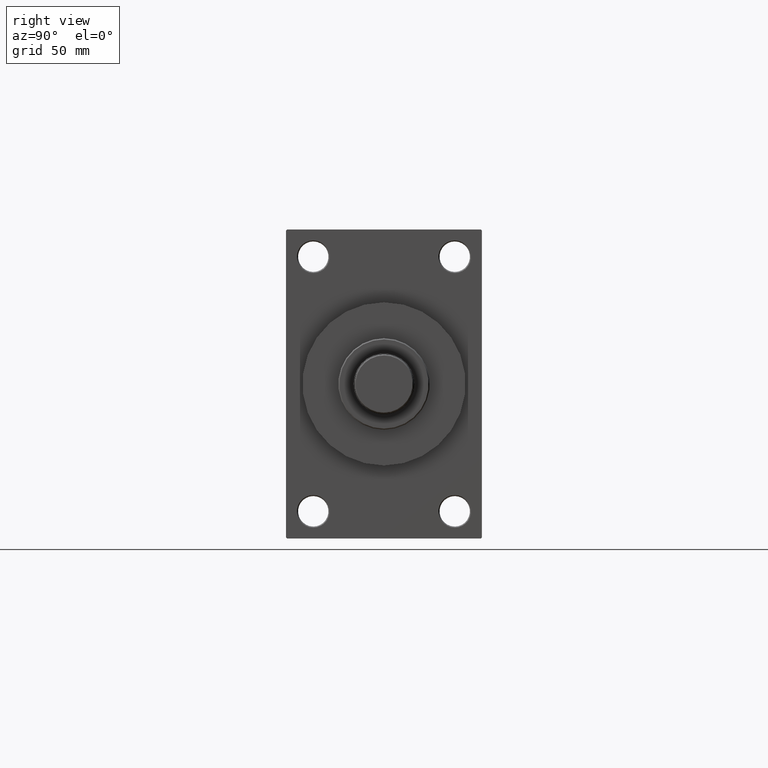
[diagram: clean part render]
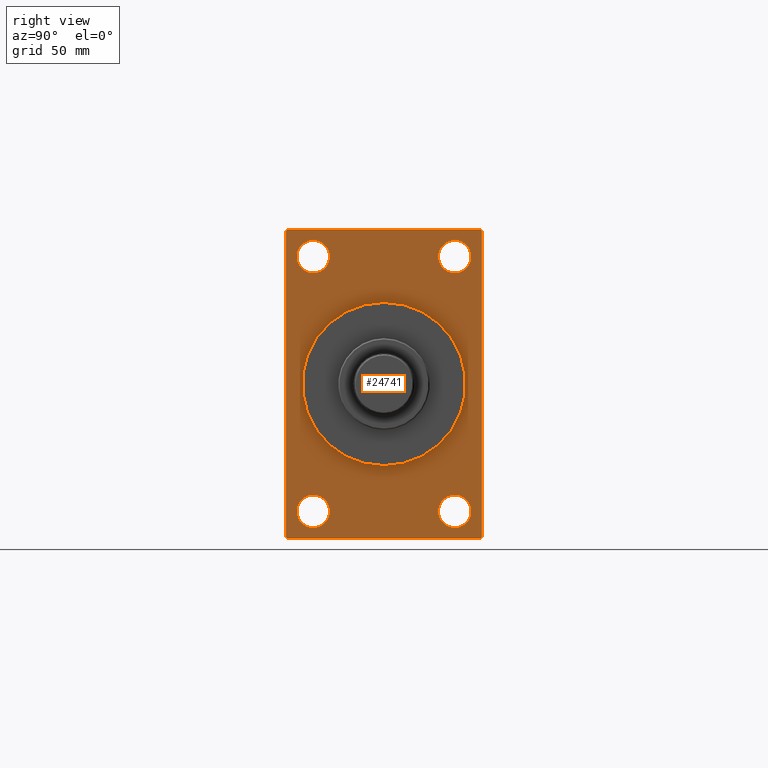
[diagram: same view with one face highlighted and labeled with its STEP entity id]
A machine part, right view. The second image highlights one B-rep face of the part: STEP entity #24741.
In plain terms, the highlighted planar face has unit normal (-1, 0, 0).
Its self-contained STEP definition (entity closure, byte-faithful):
#210 = EDGE_CURVE ( 'NONE', #25524, #32877, #15216, .T. ) ;
#510 = CARTESIAN_POINT ( 'NONE',  ( 200.0000000000000000, 45.00000000000000000, -71.00000000000000000 ) ) ;
#670 = CARTESIAN_POINT ( 'NONE',  ( 200.0000000000000000, -45.00000000000000000, 70.49999999999997158 ) ) ;
#742 = EDGE_CURVE ( 'NONE', #12012, #37354, #18954, .T. ) ;
#854 = ORIENTED_EDGE ( 'NONE', *, *, #17820, .T. ) ;
#901 = ORIENTED_EDGE ( 'NONE', *, *, #36516, .T. ) ;
#1204 = AXIS2_PLACEMENT_3D ( 'NONE', #23159, #15218, #29423 ) ;
#1546 = ORIENTED_EDGE ( 'NONE', *, *, #26477, .T. ) ;
#1964 = CARTESIAN_POINT ( 'NONE',  ( 200.0000000000000000, 45.00000000000000000, -70.49999999999997158 ) ) ;
#2225 = AXIS2_PLACEMENT_3D ( 'NONE', #18210, #3240, #10722 ) ;
#2400 = EDGE_CURVE ( 'NONE', #14563, #6595, #44534, .T. ) ;
#2439 = LINE ( 'NONE', #32329, #20140 ) ;
#2753 = CIRCLE ( 'NONE', #1204, 7.500000000000089706 ) ;
#3240 = DIRECTION ( 'NONE',  ( -1.000000000000000000, -0.000000000000000000, -0.000000000000000000 ) ) ;
#3327 = EDGE_CURVE ( 'NONE', #15336, #36480, #7127, .T. ) ;
#3375 = ORIENTED_EDGE ( 'NONE', *, *, #35602, .F. ) ;
#3703 = VECTOR ( 'NONE', #27293, 1000.000000000000000 ) ;
#3873 = VECTOR ( 'NONE', #23459, 1000.000000000000114 ) ;
#5484 = DIRECTION ( 'NONE',  ( -1.000000000000000000, -0.000000000000000000, -0.000000000000000000 ) ) ;
#6081 = VERTEX_POINT ( 'NONE', #670 ) ;
#6112 = CARTESIAN_POINT ( 'NONE',  ( 200.0000000000000000, 45.00000000000000000, 71.00000000000000000 ) ) ;
#6240 = CARTESIAN_POINT ( 'NONE',  ( 200.0000000000000000, -44.49999999999994316, 71.00000000000000000 ) ) ;
#6595 = VERTEX_POINT ( 'NONE', #41112 ) ;
#7127 = LINE ( 'NONE', #29294, #17744 ) ;
#7271 = CIRCLE ( 'NONE', #13457, 7.500000000000000000 ) ;
#7303 = DIRECTION ( 'NONE',  ( -1.000000000000000000, -0.000000000000000000, -0.000000000000000000 ) ) ;
#7658 = VERTEX_POINT ( 'NONE', #17559 ) ;
#8258 = CARTESIAN_POINT ( 'NONE',  ( 200.0000000000000000, -45.00000000000000000, 71.00000000000000000 ) ) ;
#8575 = AXIS2_PLACEMENT_3D ( 'NONE', #16164, #27688, #38769 ) ;
#8705 = CARTESIAN_POINT ( 'NONE',  ( 200.0000000000000000, 45.00000000000000000, 71.00000000000000000 ) ) ;
#9735 = DIRECTION ( 'NONE',  ( -1.000000000000000000, -0.000000000000000000, -0.000000000000000000 ) ) ;
#10116 = LINE ( 'NONE', #1964, #3873 ) ;
#10722 = DIRECTION ( 'NONE',  ( 0.000000000000000000, 0.000000000000000000, 1.000000000000000000 ) ) ;
#10876 = CIRCLE ( 'NONE', #8575, 37.50000000000000711 ) ;
#11105 = ORIENTED_EDGE ( 'NONE', *, *, #20535, .T. ) ;
#11376 = PLANE ( 'NONE',  #25993 ) ;
#12012 = VERTEX_POINT ( 'NONE', #47585 ) ;
#12260 = CARTESIAN_POINT ( 'NONE',  ( 200.0000000000000000, -32.50000000000001421, -58.49999999999998579 ) ) ;
#12566 = CARTESIAN_POINT ( 'NONE',  ( 200.0000000000000000, 45.00000000000000000, -70.49999999999997158 ) ) ;
#12609 = DIRECTION ( 'NONE',  ( 0.000000000000000000, 0.000000000000000000, 1.000000000000000000 ) ) ;
#12930 = VECTOR ( 'NONE', #35903, 1000.000000000000000 ) ;
#13069 = DIRECTION ( 'NONE',  ( -0.000000000000000000, -0.7071067811865474617, -0.7071067811865474617 ) ) ;
#13334 = VERTEX_POINT ( 'NONE', #23892 ) ;
#13457 = AXIS2_PLACEMENT_3D ( 'NONE', #22079, #46916, #36075 ) ;
#14303 = CARTESIAN_POINT ( 'NONE',  ( 200.0000000000000000, 0.000000000000000000, 0.000000000000000000 ) ) ;
#14339 = VERTEX_POINT ( 'NONE', #37878 ) ;
#14563 = VERTEX_POINT ( 'NONE', #37576 ) ;
#14898 = ORIENTED_EDGE ( 'NONE', *, *, #2400, .T. ) ;
#15216 = CIRCLE ( 'NONE', #33657, 7.500000000000089706 ) ;
#15218 = DIRECTION ( 'NONE',  ( -1.000000000000000000, -0.000000000000000000, -0.000000000000000000 ) ) ;
#15260 = CARTESIAN_POINT ( 'NONE',  ( 200.0000000000000000, 32.49999999999998579, -66.00000000000005684 ) ) ;
#15336 = VERTEX_POINT ( 'NONE', #24219 ) ;
#15339 = CIRCLE ( 'NONE', #42237, 37.50000000000000711 ) ;
#15843 = DIRECTION ( 'NONE',  ( 0.000000000000000000, 0.000000000000000000, 1.000000000000000000 ) ) ;
#16068 = ORIENTED_EDGE ( 'NONE', *, *, #742, .T. ) ;
#16109 = AXIS2_PLACEMENT_3D ( 'NONE', #36473, #7303, #39613 ) ;
#16164 = CARTESIAN_POINT ( 'NONE',  ( 200.0000000000000000, 0.000000000000000000, 0.000000000000000000 ) ) ;
#16540 = EDGE_LOOP ( 'NONE', ( #854, #14898 ) ) ;
#16605 = ORIENTED_EDGE ( 'NONE', *, *, #47282, .F. ) ;
#17559 = CARTESIAN_POINT ( 'NONE',  ( 200.0000000000000000, -32.50000000000001421, -50.99999999999989342 ) ) ;
#17730 = DIRECTION ( 'NONE',  ( 1.000000000000000000, 0.000000000000000000, 0.000000000000000000 ) ) ;
#17744 = VECTOR ( 'NONE', #18236, 1000.000000000000000 ) ;
#17785 = ORIENTED_EDGE ( 'NONE', *, *, #35500, .T. ) ;
#17820 = EDGE_CURVE ( 'NONE', #6595, #14563, #7271, .T. ) ;
#17967 = DIRECTION ( 'NONE',  ( 0.000000000000000000, 0.000000000000000000, -1.000000000000000000 ) ) ;
#18210 = CARTESIAN_POINT ( 'NONE',  ( 200.0000000000000000, 32.49999999999998579, 58.50000000000000711 ) ) ;
#18236 = DIRECTION ( 'NONE',  ( 0.000000000000000000, -0.7071067811865671127, 0.7071067811865279218 ) ) ;
#18629 = DIRECTION ( 'NONE',  ( -0.000000000000000000, 0.000000000000000000, 1.000000000000000000 ) ) ;
#18954 = LINE ( 'NONE', #22564, #12930 ) ;
#19084 = DIRECTION ( 'NONE',  ( 0.000000000000000000, 0.000000000000000000, -1.000000000000000000 ) ) ;
#19958 = EDGE_LOOP ( 'NONE', ( #43936, #11105 ) ) ;
#20140 = VECTOR ( 'NONE', #13069, 1000.000000000000114 ) ;
#20497 = EDGE_LOOP ( 'NONE', ( #46306, #3375 ) ) ;
#20535 = EDGE_CURVE ( 'NONE', #32877, #25524, #2753, .T. ) ;
#20608 = ORIENTED_EDGE ( 'NONE', *, *, #41942, .T. ) ;
#21365 = VERTEX_POINT ( 'NONE', #23873 ) ;
#22079 = CARTESIAN_POINT ( 'NONE',  ( 200.0000000000000000, -32.50000000000001421, 58.50000000000001421 ) ) ;
#22265 = CIRCLE ( 'NONE', #2225, 7.500000000000076383 ) ;
#22564 = CARTESIAN_POINT ( 'NONE',  ( 200.0000000000000000, -44.50000000000000000, -71.00000000000000000 ) ) ;
#23159 = CARTESIAN_POINT ( 'NONE',  ( 200.0000000000000000, 32.49999999999998579, -58.49999999999998579 ) ) ;
#23280 = EDGE_LOOP ( 'NONE', ( #1546, #16068, #28382, #29362, #16605, #38329, #24348, #20608 ) ) ;
#23459 = DIRECTION ( 'NONE',  ( -0.000000000000000000, 0.7071067811865474617, 0.7071067811865474617 ) ) ;
#23768 = AXIS2_PLACEMENT_3D ( 'NONE', #46127, #9735, #42025 ) ;
#23873 = CARTESIAN_POINT ( 'NONE',  ( 200.0000000000000000, -32.50000000000001421, -66.00000000000005684 ) ) ;
#23892 = CARTESIAN_POINT ( 'NONE',  ( 200.0000000000000000, 4.592425496802575156E-15, -37.50000000000000711 ) ) ;
#24219 = CARTESIAN_POINT ( 'NONE',  ( 200.0000000000000000, 45.00000000000000000, 70.50000000000001421 ) ) ;
#24348 = ORIENTED_EDGE ( 'NONE', *, *, #29611, .T. ) ;
#24730 = EDGE_CURVE ( 'NONE', #44725, #37354, #33545, .T. ) ;
#24741 = ADVANCED_FACE ( 'NONE', ( #28748, #43441, #32837, #40066, #29687, #47299 ), #11376, .F. ) ;
#25524 = VERTEX_POINT ( 'NONE', #15260 ) ;
#25993 = AXIS2_PLACEMENT_3D ( 'NONE', #14303, #26088, #18629 ) ;
#26050 = AXIS2_PLACEMENT_3D ( 'NONE', #12260, #5484, #26961 ) ;
#26088 = DIRECTION ( 'NONE',  ( -1.000000000000000000, 0.000000000000000000, -0.000000000000000000 ) ) ;
#26477 = EDGE_CURVE ( 'NONE', #6081, #12012, #30912, .T. ) ;
#26760 = EDGE_LOOP ( 'NONE', ( #17785, #35934 ) ) ;
#26961 = DIRECTION ( 'NONE',  ( 0.000000000000000000, 0.000000000000000000, 1.000000000000000000 ) ) ;
#27293 = DIRECTION ( 'NONE',  ( 0.000000000000000000, 0.000000000000000000, -1.000000000000000000 ) ) ;
#27688 = DIRECTION ( 'NONE',  ( 1.000000000000000000, 0.000000000000000000, 0.000000000000000000 ) ) ;
#28382 = ORIENTED_EDGE ( 'NONE', *, *, #24730, .F. ) ;
#28570 = EDGE_CURVE ( 'NONE', #47504, #31920, #36851, .T. ) ;
#28748 = FACE_BOUND ( 'NONE', #16540, .T. ) ;
#29237 = CARTESIAN_POINT ( 'NONE',  ( 200.0000000000000000, 32.49999999999998579, 50.99999999999993605 ) ) ;
#29294 = CARTESIAN_POINT ( 'NONE',  ( 200.0000000000000000, 44.50000000000000000, 71.00000000000000000 ) ) ;
#29362 = ORIENTED_EDGE ( 'NONE', *, *, #42997, .T. ) ;
#29423 = DIRECTION ( 'NONE',  ( 0.000000000000000000, 0.000000000000000000, 1.000000000000000000 ) ) ;
#29611 = EDGE_CURVE ( 'NONE', #36480, #30186, #39598, .T. ) ;
#29687 = FACE_BOUND ( 'NONE', #20497, .T. ) ;
#29731 = CARTESIAN_POINT ( 'NONE',  ( 200.0000000000000000, 0.000000000000000000, 0.000000000000000000 ) ) ;
#30186 = VERTEX_POINT ( 'NONE', #6240 ) ;
#30431 = EDGE_LOOP ( 'NONE', ( #901, #40733 ) ) ;
#30912 = LINE ( 'NONE', #8258, #3703 ) ;
#31920 = VERTEX_POINT ( 'NONE', #29237 ) ;
#32329 = CARTESIAN_POINT ( 'NONE',  ( 200.0000000000000000, -45.00000000000000000, 70.49999999999997158 ) ) ;
#32659 = CARTESIAN_POINT ( 'NONE',  ( 200.0000000000000000, 44.50000000000000000, 71.00000000000000000 ) ) ;
#32837 = FACE_BOUND ( 'NONE', #19958, .T. ) ;
#32877 = VERTEX_POINT ( 'NONE', #42461 ) ;
#33313 = DIRECTION ( 'NONE',  ( 0.000000000000000000, -1.000000000000000000, 0.000000000000000000 ) ) ;
#33545 = LINE ( 'NONE', #510, #46762 ) ;
#33657 = AXIS2_PLACEMENT_3D ( 'NONE', #45617, #37181, #12609 ) ;
#34453 = EDGE_CURVE ( 'NONE', #7658, #21365, #37560, .T. ) ;
#34730 = LINE ( 'NONE', #8705, #41717 ) ;
#35500 = EDGE_CURVE ( 'NONE', #21365, #7658, #37634, .T. ) ;
#35602 = EDGE_CURVE ( 'NONE', #13334, #14339, #15339, .T. ) ;
#35903 = DIRECTION ( 'NONE',  ( 0.000000000000000000, 0.7071067811865671127, -0.7071067811865279218 ) ) ;
#35934 = ORIENTED_EDGE ( 'NONE', *, *, #34453, .T. ) ;
#36075 = DIRECTION ( 'NONE',  ( 0.000000000000000000, 0.000000000000000000, 1.000000000000000000 ) ) ;
#36473 = CARTESIAN_POINT ( 'NONE',  ( 200.0000000000000000, 32.49999999999998579, 58.50000000000000711 ) ) ;
#36480 = VERTEX_POINT ( 'NONE', #32659 ) ;
#36516 = EDGE_CURVE ( 'NONE', #31920, #47504, #22265, .T. ) ;
#36851 = CIRCLE ( 'NONE', #16109, 7.500000000000076383 ) ;
#37181 = DIRECTION ( 'NONE',  ( -1.000000000000000000, -0.000000000000000000, -0.000000000000000000 ) ) ;
#37354 = VERTEX_POINT ( 'NONE', #47659 ) ;
#37560 = CIRCLE ( 'NONE', #26050, 7.500000000000089706 ) ;
#37576 = CARTESIAN_POINT ( 'NONE',  ( 200.0000000000000000, -32.50000000000001421, 66.00000000000001421 ) ) ;
#37634 = CIRCLE ( 'NONE', #44543, 7.500000000000089706 ) ;
#37736 = DIRECTION ( 'NONE',  ( -1.000000000000000000, -0.000000000000000000, -0.000000000000000000 ) ) ;
#37878 = CARTESIAN_POINT ( 'NONE',  ( 200.0000000000000000, 0.000000000000000000, 37.50000000000000711 ) ) ;
#38329 = ORIENTED_EDGE ( 'NONE', *, *, #3327, .T. ) ;
#38769 = DIRECTION ( 'NONE',  ( 0.000000000000000000, 0.000000000000000000, -1.000000000000000000 ) ) ;
#38842 = VERTEX_POINT ( 'NONE', #12566 ) ;
#38879 = DIRECTION ( 'NONE',  ( 0.000000000000000000, -1.000000000000000000, 0.000000000000000000 ) ) ;
#39598 = LINE ( 'NONE', #6112, #42933 ) ;
#39613 = DIRECTION ( 'NONE',  ( 0.000000000000000000, 0.000000000000000000, 1.000000000000000000 ) ) ;
#40066 = FACE_BOUND ( 'NONE', #30431, .T. ) ;
#40733 = ORIENTED_EDGE ( 'NONE', *, *, #28570, .T. ) ;
#41112 = CARTESIAN_POINT ( 'NONE',  ( 200.0000000000000000, -32.50000000000001421, 51.00000000000001421 ) ) ;
#41717 = VECTOR ( 'NONE', #19084, 1000.000000000000000 ) ;
#41825 = CARTESIAN_POINT ( 'NONE',  ( 200.0000000000000000, -32.50000000000001421, -58.49999999999998579 ) ) ;
#41942 = EDGE_CURVE ( 'NONE', #30186, #6081, #2439, .T. ) ;
#42025 = DIRECTION ( 'NONE',  ( 0.000000000000000000, 0.000000000000000000, 1.000000000000000000 ) ) ;
#42237 = AXIS2_PLACEMENT_3D ( 'NONE', #29731, #17730, #17967 ) ;
#42461 = CARTESIAN_POINT ( 'NONE',  ( 200.0000000000000000, 32.49999999999998579, -50.99999999999989342 ) ) ;
#42933 = VECTOR ( 'NONE', #38879, 1000.000000000000000 ) ;
#42997 = EDGE_CURVE ( 'NONE', #44725, #38842, #10116, .T. ) ;
#43441 = FACE_BOUND ( 'NONE', #26760, .T. ) ;
#43936 = ORIENTED_EDGE ( 'NONE', *, *, #210, .T. ) ;
#44534 = CIRCLE ( 'NONE', #23768, 7.500000000000000000 ) ;
#44543 = AXIS2_PLACEMENT_3D ( 'NONE', #41825, #37736, #15843 ) ;
#44725 = VERTEX_POINT ( 'NONE', #45416 ) ;
#45230 = EDGE_CURVE ( 'NONE', #14339, #13334, #10876, .T. ) ;
#45416 = CARTESIAN_POINT ( 'NONE',  ( 200.0000000000000000, 44.49999999999997158, -71.00000000000000000 ) ) ;
#45617 = CARTESIAN_POINT ( 'NONE',  ( 200.0000000000000000, 32.49999999999998579, -58.49999999999998579 ) ) ;
#46127 = CARTESIAN_POINT ( 'NONE',  ( 200.0000000000000000, -32.50000000000001421, 58.50000000000001421 ) ) ;
#46306 = ORIENTED_EDGE ( 'NONE', *, *, #45230, .F. ) ;
#46762 = VECTOR ( 'NONE', #33313, 1000.000000000000000 ) ;
#46916 = DIRECTION ( 'NONE',  ( -1.000000000000000000, -0.000000000000000000, -0.000000000000000000 ) ) ;
#47282 = EDGE_CURVE ( 'NONE', #15336, #38842, #34730, .T. ) ;
#47299 = FACE_OUTER_BOUND ( 'NONE', #23280, .T. ) ;
#47504 = VERTEX_POINT ( 'NONE', #47644 ) ;
#47585 = CARTESIAN_POINT ( 'NONE',  ( 200.0000000000000000, -45.00000000000000000, -70.50000000000001421 ) ) ;
#47644 = CARTESIAN_POINT ( 'NONE',  ( 200.0000000000000000, 32.49999999999998579, 66.00000000000008527 ) ) ;
#47659 = CARTESIAN_POINT ( 'NONE',  ( 200.0000000000000000, -44.49999999999997158, -71.00000000000000000 ) ) ;